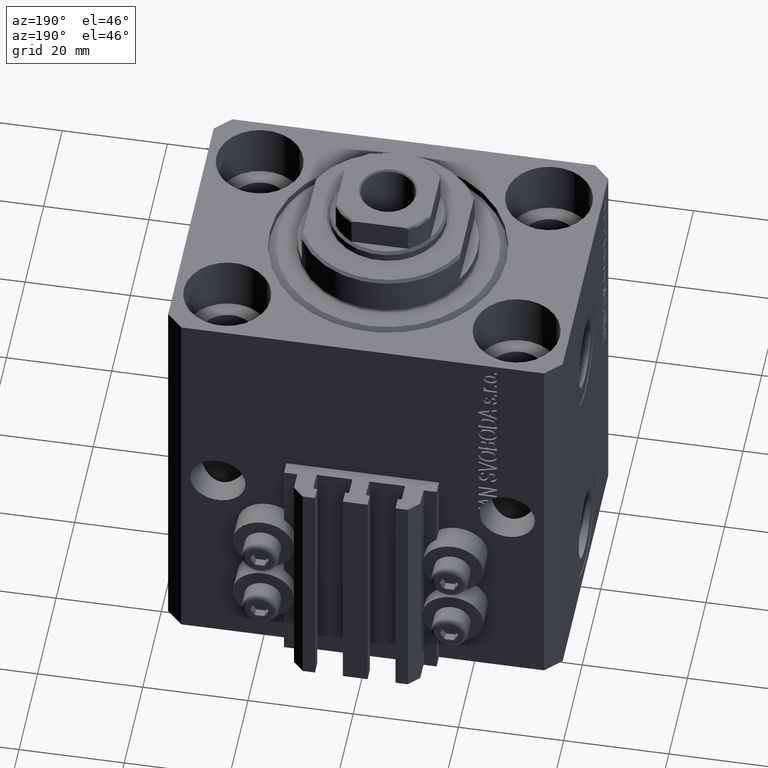
[diagram: clean part render]
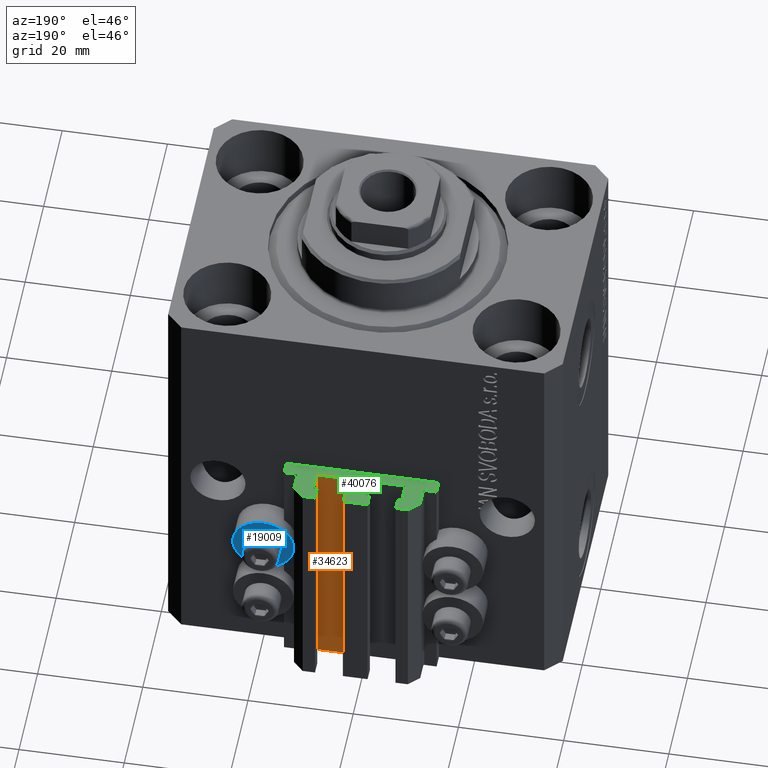
[diagram: same view with three faces highlighted in distinct colors, each labeled with its STEP entity id]
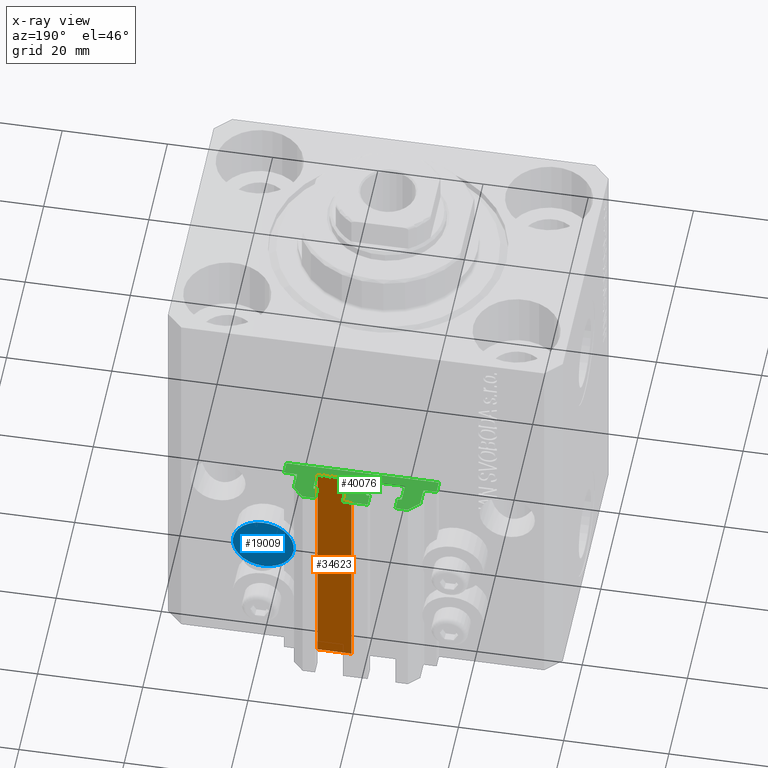
[diagram: x-ray of the same camera — body ghosted, the three highlighted faces saturated]
A machine part, auxiliary view with three faces highlighted in distinct colors.
The next image is the same camera in x-ray (body ghosted, the three faces saturated) — at least one of them is partly hidden behind the body in this view.
Their STEP definitions:

[orange] entity #34623 — the highlighted planar face has unit normal (-0, 1, 0).
#422 = EDGE_LOOP ( 'NONE', ( #7413, #28741, #29425, #23128 ) ) ;
#1154 = VECTOR ( 'NONE', #19245, 1000.000000000000000 ) ;
#2643 = DIRECTION ( 'NONE',  ( -1.084202172485504828E-15, 1.000000000000000000, 0.000000000000000000 ) ) ;
#4635 = VECTOR ( 'NONE', #43188, 1000.000000000000000 ) ;
#6173 = EDGE_CURVE ( 'NONE', #10795, #40583, #33169, .T. ) ;
#7413 = ORIENTED_EDGE ( 'NONE', *, *, #6173, .F. ) ;
#9013 = DIRECTION ( 'NONE',  ( -1.000000000000000000, -1.084202172485504828E-15, 0.000000000000000000 ) ) ;
#10795 = VERTEX_POINT ( 'NONE', #34994 ) ;
#13906 = DIRECTION ( 'NONE',  ( -1.000000000000000000, -1.084202172485504828E-15, 0.000000000000000000 ) ) ;
#16416 = LINE ( 'NONE', #20247, #19785 ) ;
#16581 = EDGE_CURVE ( 'NONE', #38679, #20516, #16416, .T. ) ;
#19245 = DIRECTION ( 'NONE',  ( -1.000000000000000000, -1.084202172485504828E-15, 0.000000000000000000 ) ) ;
#19785 = VECTOR ( 'NONE', #9013, 1000.000000000000000 ) ;
#20247 = CARTESIAN_POINT ( 'NONE',  ( 8.199999999999999289, 29.50000000000000711, -80.00000000000000000 ) ) ;
#20516 = VERTEX_POINT ( 'NONE', #30647 ) ;
#21354 = EDGE_CURVE ( 'NONE', #38679, #10795, #31716, .T. ) ;
#23128 = ORIENTED_EDGE ( 'NONE', *, *, #41628, .T. ) ;
#23729 = CARTESIAN_POINT ( 'NONE',  ( 8.199999999999999289, 29.50000000000000711, -80.00000000000000000 ) ) ;
#24377 = VECTOR ( 'NONE', #42295, 1000.000000000000000 ) ;
#28741 = ORIENTED_EDGE ( 'NONE', *, *, #21354, .F. ) ;
#28817 = LINE ( 'NONE', #38468, #24377 ) ;
#29425 = ORIENTED_EDGE ( 'NONE', *, *, #16581, .T. ) ;
#30647 = CARTESIAN_POINT ( 'NONE',  ( 1.800000000000000933, 29.50000000000000000, -80.00000000000000000 ) ) ;
#31716 = LINE ( 'NONE', #31941, #4635 ) ;
#31941 = CARTESIAN_POINT ( 'NONE',  ( 8.199999999999999289, 29.50000000000000711, -80.00000000000000000 ) ) ;
#33169 = LINE ( 'NONE', #41279, #1154 ) ;
#34623 = ADVANCED_FACE ( 'NONE', ( #46692 ), #35697, .T. ) ;
#34994 = CARTESIAN_POINT ( 'NONE',  ( 8.199999999999999289, 29.50000000000000711, -33.00000000000000000 ) ) ;
#35697 = PLANE ( 'NONE',  #40869 ) ;
#38468 = CARTESIAN_POINT ( 'NONE',  ( 1.800000000000000933, 29.50000000000000000, -80.00000000000000000 ) ) ;
#38679 = VERTEX_POINT ( 'NONE', #23729 ) ;
#39507 = CARTESIAN_POINT ( 'NONE',  ( 8.199999999999999289, 29.50000000000000711, -80.00000000000000000 ) ) ;
#40583 = VERTEX_POINT ( 'NONE', #46993 ) ;
#40869 = AXIS2_PLACEMENT_3D ( 'NONE', #39507, #2643, #13906 ) ;
#41279 = CARTESIAN_POINT ( 'NONE',  ( 8.199999999999999289, 29.50000000000000711, -33.00000000000000000 ) ) ;
#41628 = EDGE_CURVE ( 'NONE', #20516, #40583, #28817, .T. ) ;
#42295 = DIRECTION ( 'NONE',  ( 0.000000000000000000, 0.000000000000000000, 1.000000000000000000 ) ) ;
#43188 = DIRECTION ( 'NONE',  ( 0.000000000000000000, 0.000000000000000000, 1.000000000000000000 ) ) ;
#46692 = FACE_OUTER_BOUND ( 'NONE', #422, .T. ) ;
#46993 = CARTESIAN_POINT ( 'NONE',  ( 1.800000000000000933, 29.50000000000000000, -33.00000000000000000 ) ) ;

[blue] entity #19009 — the highlighted planar face has unit normal (0, -1, 0).
#62 = AXIS2_PLACEMENT_3D ( 'NONE', #12519, #41718, #38367 ) ;
#214 = FACE_BOUND ( 'NONE', #1179, .T. ) ;
#1179 = EDGE_LOOP ( 'NONE', ( #9471, #18612 ) ) ;
#1497 = AXIS2_PLACEMENT_3D ( 'NONE', #39963, #29209, #18869 ) ;
#1608 = CARTESIAN_POINT ( 'NONE',  ( 18.00000000000000355, 32.49999999996100541, -50.39999999999999858 ) ) ;
#2622 = EDGE_LOOP ( 'NONE', ( #44557, #7031 ) ) ;
#3701 = DIRECTION ( 'NONE',  ( -0.000000000000000000, -1.000000000000000000, -0.000000000000000000 ) ) ;
#6050 = CIRCLE ( 'NONE', #38932, 2.000000000000001776 ) ;
#7031 = ORIENTED_EDGE ( 'NONE', *, *, #46108, .F. ) ;
#7707 = CIRCLE ( 'NONE', #62, 5.799999999999999822 ) ;
#8754 = DIRECTION ( 'NONE',  ( -0.000000000000000000, -1.000000000000000000, -0.000000000000000000 ) ) ;
#9460 = CARTESIAN_POINT ( 'NONE',  ( 18.00000000000000355, 32.49999999996100541, -50.39999999999999858 ) ) ;
#9471 = ORIENTED_EDGE ( 'NONE', *, *, #42215, .T. ) ;
#9902 = CIRCLE ( 'NONE', #22907, 2.000000000000001776 ) ;
#12519 = CARTESIAN_POINT ( 'NONE',  ( 18.00000000000000355, 32.49999999996100541, -50.39999999999999858 ) ) ;
#12643 = DIRECTION ( 'NONE',  ( 0.000000000000000000, 0.000000000000000000, 1.000000000000000000 ) ) ;
#13310 = CARTESIAN_POINT ( 'NONE',  ( 18.00000000000000355, 32.49999999996100541, -52.40000000000000568 ) ) ;
#17491 = VERTEX_POINT ( 'NONE', #28654 ) ;
#18317 = DIRECTION ( 'NONE',  ( 0.000000000000000000, 0.000000000000000000, 1.000000000000000000 ) ) ;
#18434 = VERTEX_POINT ( 'NONE', #13310 ) ;
#18612 = ORIENTED_EDGE ( 'NONE', *, *, #42934, .T. ) ;
#18869 = DIRECTION ( 'NONE',  ( -0.000000000000000000, 0.000000000000000000, -1.000000000000000000 ) ) ;
#19009 = ADVANCED_FACE ( 'NONE', ( #214, #33268 ), #29446, .F. ) ;
#22143 = CARTESIAN_POINT ( 'NONE',  ( 18.00000000000000355, 32.49999999996100541, -50.39999999999999858 ) ) ;
#22907 = AXIS2_PLACEMENT_3D ( 'NONE', #9460, #8754, #45835 ) ;
#23023 = VERTEX_POINT ( 'NONE', #29790 ) ;
#24740 = CIRCLE ( 'NONE', #30091, 5.799999999999999822 ) ;
#27028 = VERTEX_POINT ( 'NONE', #45962 ) ;
#27221 = EDGE_CURVE ( 'NONE', #23023, #27028, #24740, .T. ) ;
#28654 = CARTESIAN_POINT ( 'NONE',  ( 18.00000000000000355, 32.49999999996100541, -48.39999999999999858 ) ) ;
#29209 = DIRECTION ( 'NONE',  ( 0.000000000000000000, -1.000000000000000000, -0.000000000000000000 ) ) ;
#29446 = PLANE ( 'NONE',  #1497 ) ;
#29790 = CARTESIAN_POINT ( 'NONE',  ( 18.00000000000000355, 32.49999999996100541, -44.60000000000000142 ) ) ;
#30091 = AXIS2_PLACEMENT_3D ( 'NONE', #1608, #30850, #12643 ) ;
#30850 = DIRECTION ( 'NONE',  ( -0.000000000000000000, -1.000000000000000000, -0.000000000000000000 ) ) ;
#33268 = FACE_OUTER_BOUND ( 'NONE', #2622, .T. ) ;
#38367 = DIRECTION ( 'NONE',  ( 0.000000000000000000, 0.000000000000000000, 1.000000000000000000 ) ) ;
#38932 = AXIS2_PLACEMENT_3D ( 'NONE', #22143, #3701, #18317 ) ;
#39963 = CARTESIAN_POINT ( 'NONE',  ( 12.20000000000000284, 32.49999999996100541, -50.39999999999999858 ) ) ;
#41718 = DIRECTION ( 'NONE',  ( -0.000000000000000000, -1.000000000000000000, -0.000000000000000000 ) ) ;
#42215 = EDGE_CURVE ( 'NONE', #17491, #18434, #6050, .T. ) ;
#42934 = EDGE_CURVE ( 'NONE', #18434, #17491, #9902, .T. ) ;
#44557 = ORIENTED_EDGE ( 'NONE', *, *, #27221, .F. ) ;
#45835 = DIRECTION ( 'NONE',  ( 0.000000000000000000, 0.000000000000000000, 1.000000000000000000 ) ) ;
#45962 = CARTESIAN_POINT ( 'NONE',  ( 18.00000000000000355, 32.49999999996100541, -56.20000000000000284 ) ) ;
#46108 = EDGE_CURVE ( 'NONE', #27028, #23023, #7707, .T. ) ;

[green] entity #40076 — the highlighted planar face has unit normal (0, 0, 1).
#93 = VECTOR ( 'NONE', #3842, 1000.000000000000000 ) ;
#95 = ORIENTED_EDGE ( 'NONE', *, *, #41679, .T. ) ;
#294 = ORIENTED_EDGE ( 'NONE', *, *, #34021, .T. ) ;
#355 = VERTEX_POINT ( 'NONE', #30087 ) ;
#427 = VERTEX_POINT ( 'NONE', #13929 ) ;
#461 = ORIENTED_EDGE ( 'NONE', *, *, #30390, .F. ) ;
#508 = CARTESIAN_POINT ( 'NONE',  ( 12.00000000000000000, 33.50000000000001421, -33.00000000000000000 ) ) ;
#671 = LINE ( 'NONE', #25358, #37748 ) ;
#682 = VECTOR ( 'NONE', #43181, 1000.000000000000000 ) ;
#1154 = VECTOR ( 'NONE', #19245, 1000.000000000000000 ) ;
#1726 = AXIS2_PLACEMENT_3D ( 'NONE', #15815, #5519, #34267 ) ;
#1743 = EDGE_CURVE ( 'NONE', #22762, #427, #671, .T. ) ;
#1856 = CARTESIAN_POINT ( 'NONE',  ( -10.00000000000000000, 35.50000000000000000, -33.00000000000000000 ) ) ;
#1875 = DIRECTION ( 'NONE',  ( 1.807003620809174632E-16, -1.000000000000000000, 0.000000000000000000 ) ) ;
#1945 = EDGE_CURVE ( 'NONE', #23983, #15799, #15989, .T. ) ;
#1978 = CARTESIAN_POINT ( 'NONE',  ( 1.800000000000000933, 32.90000000000001279, -33.00000000000000000 ) ) ;
#2035 = DIRECTION ( 'NONE',  ( -5.421010862427496532E-16, -1.000000000000000000, 0.000000000000000000 ) ) ;
#2072 = ORIENTED_EDGE ( 'NONE', *, *, #9873, .F. ) ;
#2077 = VECTOR ( 'NONE', #16484, 1000.000000000000000 ) ;
#2109 = VECTOR ( 'NONE', #16728, 1000.000000000000000 ) ;
#2466 = DIRECTION ( 'NONE',  ( 1.000000000000000000, 0.000000000000000000, 0.000000000000000000 ) ) ;
#2528 = EDGE_CURVE ( 'NONE', #23568, #24654, #13889, .T. ) ;
#2552 = CIRCLE ( 'NONE', #42310, 0.2000000000000016209 ) ;
#3842 = DIRECTION ( 'NONE',  ( 1.000000000000000000, -1.261617073437681085E-14, 0.000000000000000000 ) ) ;
#4005 = VERTEX_POINT ( 'NONE', #38655 ) ;
#4211 = VERTEX_POINT ( 'NONE', #30012 ) ;
#4399 = AXIS2_PLACEMENT_3D ( 'NONE', #26088, #44741, #29211 ) ;
#5230 = CIRCLE ( 'NONE', #9834, 0.1999999999999987899 ) ;
#5302 = ORIENTED_EDGE ( 'NONE', *, *, #39037, .F. ) ;
#5407 = DIRECTION ( 'NONE',  ( -1.000000000000000000, 0.000000000000000000, 0.000000000000000000 ) ) ;
#5445 = VERTEX_POINT ( 'NONE', #46915 ) ;
#5519 = DIRECTION ( 'NONE',  ( 0.000000000000000000, 0.000000000000000000, 1.000000000000000000 ) ) ;
#5555 = VERTEX_POINT ( 'NONE', #42615 ) ;
#6114 = LINE ( 'NONE', #42749, #38831 ) ;
#6115 = LINE ( 'NONE', #38914, #18702 ) ;
#6173 = EDGE_CURVE ( 'NONE', #10795, #40583, #33169, .T. ) ;
#6193 = CARTESIAN_POINT ( 'NONE',  ( 8.399999999999998579, 32.90000000000001990, -33.00000000000000000 ) ) ;
#6479 = PLANE ( 'NONE',  #37325 ) ;
#6695 = DIRECTION ( 'NONE',  ( 0.000000000000000000, 1.000000000000000000, 0.000000000000000000 ) ) ;
#6787 = LINE ( 'NONE', #45886, #41184 ) ;
#6855 = CARTESIAN_POINT ( 'NONE',  ( -14.50000000000000000, 29.99999999999999289, -33.00000000000000000 ) ) ;
#6899 = CARTESIAN_POINT ( 'NONE',  ( 2.349999999999999645, 35.50000000000001421, -33.00000000000000000 ) ) ;
#7842 = ORIENTED_EDGE ( 'NONE', *, *, #11061, .T. ) ;
#8081 = ORIENTED_EDGE ( 'NONE', *, *, #42762, .T. ) ;
#8103 = LINE ( 'NONE', #15981, #15506 ) ;
#8144 = CARTESIAN_POINT ( 'NONE',  ( 12.00000000000000178, 30.20000000000002061, -33.00000000000000000 ) ) ;
#8185 = DIRECTION ( 'NONE',  ( -0.7071067811865474617, 0.7071067811865474617, 0.000000000000000000 ) ) ;
#9083 = VECTOR ( 'NONE', #33400, 1000.000000000000000 ) ;
#9164 = EDGE_CURVE ( 'NONE', #45256, #12548, #38747, .T. ) ;
#9280 = ORIENTED_EDGE ( 'NONE', *, *, #40641, .T. ) ;
#9317 = DIRECTION ( 'NONE',  ( 1.000000000000000000, 0.000000000000000000, 0.000000000000000000 ) ) ;
#9546 = VECTOR ( 'NONE', #2035, 1000.000000000000000 ) ;
#9704 = VERTEX_POINT ( 'NONE', #34581 ) ;
#9737 = DIRECTION ( 'NONE',  ( -1.084202172485505223E-15, 1.000000000000000000, 0.000000000000000000 ) ) ;
#9818 = CARTESIAN_POINT ( 'NONE',  ( 8.199999999999999289, 29.70000000000000284, -33.00000000000000000 ) ) ;
#9834 = AXIS2_PLACEMENT_3D ( 'NONE', #29733, #21597, #25908 ) ;
#9856 = CIRCLE ( 'NONE', #28206, 0.1999999999999994282 ) ;
#9873 = EDGE_CURVE ( 'NONE', #31463, #36011, #31219, .T. ) ;
#10002 = ORIENTED_EDGE ( 'NONE', *, *, #16763, .F. ) ;
#10150 = CARTESIAN_POINT ( 'NONE',  ( 2.349999999999999645, 33.10000000000000853, -33.00000000000000000 ) ) ;
#10297 = EDGE_CURVE ( 'NONE', #39164, #4005, #35587, .T. ) ;
#10348 = CARTESIAN_POINT ( 'NONE',  ( -2.350000000000003197, 33.10000000000000853, -33.00000000000000000 ) ) ;
#10624 = VERTEX_POINT ( 'NONE', #29995 ) ;
#10786 = LINE ( 'NONE', #25382, #45732 ) ;
#10795 = VERTEX_POINT ( 'NONE', #34994 ) ;
#10817 = CIRCLE ( 'NONE', #38327, 0.1999999999999987899 ) ;
#11061 = EDGE_CURVE ( 'NONE', #38008, #20220, #19615, .T. ) ;
#11155 = EDGE_CURVE ( 'NONE', #4211, #46186, #27990, .T. ) ;
#11334 = VECTOR ( 'NONE', #5407, 1000.000000000000000 ) ;
#11407 = CIRCLE ( 'NONE', #44270, 0.2000000000000005107 ) ;
#11569 = VERTEX_POINT ( 'NONE', #31064 ) ;
#12025 = CARTESIAN_POINT ( 'NONE',  ( 12.00000000000000000, 33.50000000000001421, -33.00000000000000000 ) ) ;
#12076 = VECTOR ( 'NONE', #23451, 1000.000000000000000 ) ;
#12225 = EDGE_CURVE ( 'NONE', #427, #5555, #10786, .T. ) ;
#12511 = CARTESIAN_POINT ( 'NONE',  ( -12.20000000000000107, 29.99999999999998934, -33.00000000000000000 ) ) ;
#12548 = VERTEX_POINT ( 'NONE', #19548 ) ;
#12655 = ORIENTED_EDGE ( 'NONE', *, *, #28119, .F. ) ;
#12839 = CARTESIAN_POINT ( 'NONE',  ( 8.400000000000000355, 32.90000000000001990, -33.00000000000000000 ) ) ;
#13087 = EDGE_CURVE ( 'NONE', #10624, #22762, #22016, .T. ) ;
#13204 = CARTESIAN_POINT ( 'NONE',  ( 12.20000000000000107, 30.20000000000002061, -33.00000000000000000 ) ) ;
#13398 = CARTESIAN_POINT ( 'NONE',  ( -1.800000000000000933, 29.50000000000000355, -33.00000000000000000 ) ) ;
#13777 = CARTESIAN_POINT ( 'NONE',  ( 7.649999999999998579, 35.50000000000001421, -33.00000000000000000 ) ) ;
#13781 = DIRECTION ( 'NONE',  ( 1.000000000000000000, 0.000000000000000000, 0.000000000000000000 ) ) ;
#13812 = LINE ( 'NONE', #6855, #39713 ) ;
#13841 = CARTESIAN_POINT ( 'NONE',  ( 12.00000000000000178, 30.20000000000002061, -33.00000000000000000 ) ) ;
#13884 = AXIS2_PLACEMENT_3D ( 'NONE', #14946, #18755, #22593 ) ;
#13889 = LINE ( 'NONE', #42389, #34707 ) ;
#13914 = CIRCLE ( 'NONE', #22346, 0.2000000000000033418 ) ;
#13929 = CARTESIAN_POINT ( 'NONE',  ( 7.649999999999998579, 33.10000000000001563, -33.00000000000000000 ) ) ;
#14453 = ORIENTED_EDGE ( 'NONE', *, *, #40391, .T. ) ;
#14467 = ORIENTED_EDGE ( 'NONE', *, *, #27144, .T. ) ;
#14946 = CARTESIAN_POINT ( 'NONE',  ( -12.20000000000000107, 30.19999999999999218, -33.00000000000000000 ) ) ;
#15065 = DIRECTION ( 'NONE',  ( 1.000000000000000000, -1.261617073437673828E-14, 0.000000000000000000 ) ) ;
#15506 = VECTOR ( 'NONE', #40412, 1000.000000000000000 ) ;
#15570 = CARTESIAN_POINT ( 'NONE',  ( -8.199999999999997513, 29.50000000000000355, -33.00000000000000000 ) ) ;
#15799 = VERTEX_POINT ( 'NONE', #31734 ) ;
#15815 = CARTESIAN_POINT ( 'NONE',  ( -1.800000000000000933, 32.90000000000001279, -33.00000000000000000 ) ) ;
#15963 = CIRCLE ( 'NONE', #4399, 0.1999999999999970690 ) ;
#15981 = CARTESIAN_POINT ( 'NONE',  ( 14.49999999999999645, 30.00000000000002487, -33.00000000000000000 ) ) ;
#15989 = LINE ( 'NONE', #1856, #16308 ) ;
#16291 = ORIENTED_EDGE ( 'NONE', *, *, #22982, .F. ) ;
#16308 = VECTOR ( 'NONE', #20061, 1000.000000000000227 ) ;
#16363 = DIRECTION ( 'NONE',  ( 1.000000000000000000, 0.000000000000000000, 0.000000000000000000 ) ) ;
#16484 = DIRECTION ( 'NONE',  ( -1.000000000000000000, 1.508455196501571429E-15, 0.000000000000000000 ) ) ;
#16728 = DIRECTION ( 'NONE',  ( -1.000000000000000000, 0.000000000000000000, 0.000000000000000000 ) ) ;
#16763 = EDGE_CURVE ( 'NONE', #4211, #26931, #9856, .T. ) ;
#16907 = LINE ( 'NONE', #20736, #23000 ) ;
#17013 = DIRECTION ( 'NONE',  ( 1.000000000000000000, 0.000000000000000000, -0.000000000000000000 ) ) ;
#17124 = LINE ( 'NONE', #12839, #9546 ) ;
#17941 = DIRECTION ( 'NONE',  ( 1.000000000000000000, 1.261617073437685503E-14, 0.000000000000000000 ) ) ;
#18086 = DIRECTION ( 'NONE',  ( 0.000000000000000000, -1.000000000000000000, 0.000000000000000000 ) ) ;
#18151 = CARTESIAN_POINT ( 'NONE',  ( -2.350000000000003642, 35.50000000000001421, -33.00000000000000000 ) ) ;
#18702 = VECTOR ( 'NONE', #35577, 1000.000000000000000 ) ;
#18755 = DIRECTION ( 'NONE',  ( 0.000000000000000000, 0.000000000000000000, 1.000000000000000000 ) ) ;
#18894 = VERTEX_POINT ( 'NONE', #39268 ) ;
#19141 = ORIENTED_EDGE ( 'NONE', *, *, #41802, .T. ) ;
#19245 = DIRECTION ( 'NONE',  ( -1.000000000000000000, -1.084202172485504828E-15, 0.000000000000000000 ) ) ;
#19548 = CARTESIAN_POINT ( 'NONE',  ( -14.50000000000000000, 29.99999999999999289, -33.00000000000000000 ) ) ;
#19615 = LINE ( 'NONE', #8144, #12076 ) ;
#19680 = EDGE_CURVE ( 'NONE', #31463, #43370, #23676, .T. ) ;
#19961 = DIRECTION ( 'NONE',  ( 0.000000000000000000, 0.000000000000000000, 1.000000000000000000 ) ) ;
#20061 = DIRECTION ( 'NONE',  ( -0.7071067811865460184, -0.7071067811865490160, 0.000000000000000000 ) ) ;
#20220 = VERTEX_POINT ( 'NONE', #12025 ) ;
#20257 = CARTESIAN_POINT ( 'NONE',  ( -7.650000000000000355, 35.50000000000000000, -33.00000000000000000 ) ) ;
#20273 = CARTESIAN_POINT ( 'NONE',  ( -1.600000000000000533, 32.90000000000001279, -33.00000000000000000 ) ) ;
#20382 = CARTESIAN_POINT ( 'NONE',  ( 12.20000000000000107, 30.20000000000002061, -33.00000000000000000 ) ) ;
#20579 = VERTEX_POINT ( 'NONE', #6193 ) ;
#20667 = CARTESIAN_POINT ( 'NONE',  ( -2.350000000000003642, 35.50000000000001421, -33.00000000000000000 ) ) ;
#20736 = CARTESIAN_POINT ( 'NONE',  ( 14.49999999999999645, 27.50000000000000355, -33.00000000000000000 ) ) ;
#20878 = EDGE_CURVE ( 'NONE', #9704, #29379, #16907, .T. ) ;
#21210 = ORIENTED_EDGE ( 'NONE', *, *, #1945, .T. ) ;
#21597 = DIRECTION ( 'NONE',  ( 0.000000000000000000, 0.000000000000000000, 1.000000000000000000 ) ) ;
#22016 = LINE ( 'NONE', #36631, #35074 ) ;
#22346 = AXIS2_PLACEMENT_3D ( 'NONE', #1978, #19961, #16363 ) ;
#22359 = ORIENTED_EDGE ( 'NONE', *, *, #24763, .F. ) ;
#22427 = EDGE_CURVE ( 'NONE', #18894, #5445, #40476, .T. ) ;
#22593 = DIRECTION ( 'NONE',  ( 1.000000000000000000, 0.000000000000000000, 0.000000000000000000 ) ) ;
#22762 = VERTEX_POINT ( 'NONE', #13777 ) ;
#22982 = EDGE_CURVE ( 'NONE', #45256, #11569, #24610, .T. ) ;
#23000 = VECTOR ( 'NONE', #45646, 1000.000000000000000 ) ;
#23385 = ORIENTED_EDGE ( 'NONE', *, *, #2528, .T. ) ;
#23430 = CIRCLE ( 'NONE', #27262, 0.1999999999999987899 ) ;
#23451 = DIRECTION ( 'NONE',  ( -5.256737805990334897E-16, 1.000000000000000000, 0.000000000000000000 ) ) ;
#23548 = CARTESIAN_POINT ( 'NONE',  ( -7.650000000000000355, 35.50000000000000000, -33.00000000000000000 ) ) ;
#23568 = VERTEX_POINT ( 'NONE', #37978 ) ;
#23676 = LINE ( 'NONE', #27039, #27560 ) ;
#23952 = EDGE_CURVE ( 'NONE', #20220, #10624, #40974, .T. ) ;
#23983 = VERTEX_POINT ( 'NONE', #25909 ) ;
#24256 = DIRECTION ( 'NONE',  ( 0.000000000000000000, 1.000000000000000000, 0.000000000000000000 ) ) ;
#24601 = EDGE_LOOP ( 'NONE', ( #8081, #41123, #32736, #14467, #31548, #7842, #26905, #40404, #35055, #28130, #28512, #294, #34197, #44411, #12655, #31807, #22359, #30838, #9280, #2072, #37161, #26293, #461, #95, #10002, #46461, #45663, #25385, #5302, #19141, #23385, #37515, #21210, #14453, #16291, #40933 ) ) ;
#24610 = CIRCLE ( 'NONE', #13884, 0.2000000000000005107 ) ;
#24654 = VERTEX_POINT ( 'NONE', #23548 ) ;
#24763 = EDGE_CURVE ( 'NONE', #18894, #40195, #13914, .T. ) ;
#24905 = CARTESIAN_POINT ( 'NONE',  ( -8.199999999999997513, 33.09999999999998721, -33.00000000000000000 ) ) ;
#24967 = CARTESIAN_POINT ( 'NONE',  ( -14.50000000000000000, 27.50000000000000355, -33.00000000000000000 ) ) ;
#25024 = DIRECTION ( 'NONE',  ( 0.000000000000000000, 1.000000000000000000, 0.000000000000000000 ) ) ;
#25358 = CARTESIAN_POINT ( 'NONE',  ( 7.649999999999998579, 35.50000000000001421, -33.00000000000000000 ) ) ;
#25382 = CARTESIAN_POINT ( 'NONE',  ( 7.649999999999998579, 33.10000000000001563, -33.00000000000000000 ) ) ;
#25385 = ORIENTED_EDGE ( 'NONE', *, *, #10297, .T. ) ;
#25791 = VECTOR ( 'NONE', #2466, 1000.000000000000000 ) ;
#25908 = DIRECTION ( 'NONE',  ( 1.000000000000000000, 0.000000000000000000, 0.000000000000000000 ) ) ;
#25909 = CARTESIAN_POINT ( 'NONE',  ( -10.00000000000000000, 35.50000000000000000, -33.00000000000000000 ) ) ;
#26075 = DIRECTION ( 'NONE',  ( 0.000000000000000000, -1.000000000000000000, 0.000000000000000000 ) ) ;
#26088 = CARTESIAN_POINT ( 'NONE',  ( 8.200000000000001066, 32.90000000000001990, -33.00000000000000000 ) ) ;
#26293 = ORIENTED_EDGE ( 'NONE', *, *, #33999, .T. ) ;
#26747 = CARTESIAN_POINT ( 'NONE',  ( 1.600000000000000533, 32.90000000000001279, -33.00000000000000000 ) ) ;
#26890 = CARTESIAN_POINT ( 'NONE',  ( 14.49999999999999645, 30.00000000000002487, -33.00000000000000000 ) ) ;
#26905 = ORIENTED_EDGE ( 'NONE', *, *, #23952, .T. ) ;
#26931 = VERTEX_POINT ( 'NONE', #31130 ) ;
#27039 = CARTESIAN_POINT ( 'NONE',  ( -2.350000000000003642, 35.50000000000001421, -33.00000000000000000 ) ) ;
#27104 = DIRECTION ( 'NONE',  ( 1.000000000000000000, 0.000000000000000000, 0.000000000000000000 ) ) ;
#27144 = EDGE_CURVE ( 'NONE', #29379, #355, #8103, .T. ) ;
#27262 = AXIS2_PLACEMENT_3D ( 'NONE', #20382, #45759, #27104 ) ;
#27560 = VECTOR ( 'NONE', #1875, 1000.000000000000000 ) ;
#27575 = CARTESIAN_POINT ( 'NONE',  ( 1.599999999999999645, 29.69999999999999929, -33.00000000000000000 ) ) ;
#27963 = CARTESIAN_POINT ( 'NONE',  ( 1.800000000000000933, 29.69999999999999929, -33.00000000000000000 ) ) ;
#27990 = LINE ( 'NONE', #13398, #2109 ) ;
#28011 = DIRECTION ( 'NONE',  ( 1.000000000000000000, 0.000000000000000000, 0.000000000000000000 ) ) ;
#28119 = EDGE_CURVE ( 'NONE', #40958, #40583, #2552, .T. ) ;
#28130 = ORIENTED_EDGE ( 'NONE', *, *, #12225, .T. ) ;
#28206 = AXIS2_PLACEMENT_3D ( 'NONE', #43219, #39145, #13781 ) ;
#28244 = DIRECTION ( 'NONE',  ( 0.000000000000000000, 0.000000000000000000, 1.000000000000000000 ) ) ;
#28512 = ORIENTED_EDGE ( 'NONE', *, *, #38970, .F. ) ;
#29109 = LINE ( 'NONE', #43943, #9083 ) ;
#29211 = DIRECTION ( 'NONE',  ( 1.000000000000000000, 0.000000000000000000, 0.000000000000000000 ) ) ;
#29379 = VERTEX_POINT ( 'NONE', #26890 ) ;
#29383 = CARTESIAN_POINT ( 'NONE',  ( 8.400000000000000355, 29.70000000000000284, -33.00000000000000000 ) ) ;
#29733 = CARTESIAN_POINT ( 'NONE',  ( -8.199999999999997513, 29.69999999999999929, -33.00000000000000000 ) ) ;
#29995 = CARTESIAN_POINT ( 'NONE',  ( 9.999999999999998224, 35.50000000000001421, -33.00000000000000000 ) ) ;
#30012 = CARTESIAN_POINT ( 'NONE',  ( -1.800000000000000933, 29.50000000000000355, -33.00000000000000000 ) ) ;
#30087 = CARTESIAN_POINT ( 'NONE',  ( 12.20000000000000107, 30.00000000000002487, -33.00000000000000000 ) ) ;
#30390 = EDGE_CURVE ( 'NONE', #44780, #36451, #39198, .T. ) ;
#30838 = ORIENTED_EDGE ( 'NONE', *, *, #22427, .T. ) ;
#30916 = VERTEX_POINT ( 'NONE', #41715 ) ;
#31064 = CARTESIAN_POINT ( 'NONE',  ( -12.00000000000000000, 30.19999999999999218, -33.00000000000000000 ) ) ;
#31130 = CARTESIAN_POINT ( 'NONE',  ( -1.600000000000000755, 29.69999999999999929, -33.00000000000000000 ) ) ;
#31181 = VECTOR ( 'NONE', #9737, 1000.000000000000000 ) ;
#31219 = LINE ( 'NONE', #20667, #25791 ) ;
#31289 = DIRECTION ( 'NONE',  ( 1.000000000000000000, 0.000000000000000000, 0.000000000000000000 ) ) ;
#31463 = VERTEX_POINT ( 'NONE', #18151 ) ;
#31548 = ORIENTED_EDGE ( 'NONE', *, *, #35389, .F. ) ;
#31734 = CARTESIAN_POINT ( 'NONE',  ( -12.00000000000000000, 33.49999999999998579, -33.00000000000000000 ) ) ;
#31807 = ORIENTED_EDGE ( 'NONE', *, *, #39403, .T. ) ;
#31931 = DIRECTION ( 'NONE',  ( -1.000000000000000000, 0.000000000000000000, 0.000000000000000000 ) ) ;
#32736 = ORIENTED_EDGE ( 'NONE', *, *, #20878, .T. ) ;
#33169 = LINE ( 'NONE', #41279, #1154 ) ;
#33271 = CARTESIAN_POINT ( 'NONE',  ( -8.199999999999997513, 32.89999999999999147, -33.00000000000000000 ) ) ;
#33400 = DIRECTION ( 'NONE',  ( 0.000000000000000000, -1.000000000000000000, 0.000000000000000000 ) ) ;
#33999 = EDGE_CURVE ( 'NONE', #43370, #36451, #6115, .T. ) ;
#34021 = EDGE_CURVE ( 'NONE', #20579, #36340, #17124, .T. ) ;
#34197 = ORIENTED_EDGE ( 'NONE', *, *, #46450, .F. ) ;
#34267 = DIRECTION ( 'NONE',  ( 1.000000000000000000, 0.000000000000000000, 0.000000000000000000 ) ) ;
#34581 = CARTESIAN_POINT ( 'NONE',  ( 14.49999999999999645, 27.50000000000000355, -33.00000000000000000 ) ) ;
#34707 = VECTOR ( 'NONE', #6695, 1000.000000000000000 ) ;
#34994 = CARTESIAN_POINT ( 'NONE',  ( 8.199999999999999289, 29.50000000000000711, -33.00000000000000000 ) ) ;
#35042 = VECTOR ( 'NONE', #24256, 1000.000000000000000 ) ;
#35055 = ORIENTED_EDGE ( 'NONE', *, *, #1743, .T. ) ;
#35074 = VECTOR ( 'NONE', #31931, 1000.000000000000000 ) ;
#35143 = DIRECTION ( 'NONE',  ( 1.000000000000000000, 0.000000000000000000, 0.000000000000000000 ) ) ;
#35389 = EDGE_CURVE ( 'NONE', #38008, #355, #23430, .T. ) ;
#35452 = LINE ( 'NONE', #24905, #38899 ) ;
#35461 = DIRECTION ( 'NONE',  ( 0.000000000000000000, 0.000000000000000000, 1.000000000000000000 ) ) ;
#35577 = DIRECTION ( 'NONE',  ( 1.000000000000000000, 1.261617073437673039E-14, 0.000000000000000000 ) ) ;
#35587 = LINE ( 'NONE', #42999, #31181 ) ;
#36011 = VERTEX_POINT ( 'NONE', #6899 ) ;
#36340 = VERTEX_POINT ( 'NONE', #29383 ) ;
#36451 = VERTEX_POINT ( 'NONE', #37497 ) ;
#36631 = CARTESIAN_POINT ( 'NONE',  ( 9.999999999999998224, 35.50000000000001421, -33.00000000000000000 ) ) ;
#36659 = CARTESIAN_POINT ( 'NONE',  ( 1.800000000000000933, 33.10000000000001563, -33.00000000000000000 ) ) ;
#36872 = VECTOR ( 'NONE', #8185, 1000.000000000000114 ) ;
#37161 = ORIENTED_EDGE ( 'NONE', *, *, #19680, .T. ) ;
#37325 = AXIS2_PLACEMENT_3D ( 'NONE', #13204, #35461, #17013 ) ;
#37497 = CARTESIAN_POINT ( 'NONE',  ( -1.800000000000000933, 33.10000000000001563, -33.00000000000000000 ) ) ;
#37515 = ORIENTED_EDGE ( 'NONE', *, *, #39310, .T. ) ;
#37748 = VECTOR ( 'NONE', #26075, 1000.000000000000000 ) ;
#37807 = EDGE_CURVE ( 'NONE', #39164, #46186, #5230, .T. ) ;
#37978 = CARTESIAN_POINT ( 'NONE',  ( -7.650000000000000355, 33.09999999999999432, -33.00000000000000000 ) ) ;
#38008 = VERTEX_POINT ( 'NONE', #13841 ) ;
#38236 = LINE ( 'NONE', #20273, #682 ) ;
#38327 = AXIS2_PLACEMENT_3D ( 'NONE', #9818, #28244, #28011 ) ;
#38452 = LINE ( 'NONE', #20257, #11334 ) ;
#38497 = DIRECTION ( 'NONE',  ( 0.000000000000000000, 0.000000000000000000, 1.000000000000000000 ) ) ;
#38655 = CARTESIAN_POINT ( 'NONE',  ( -8.400000000000000355, 32.89999999999999858, -33.00000000000000000 ) ) ;
#38747 = LINE ( 'NONE', #45692, #2077 ) ;
#38831 = VECTOR ( 'NONE', #25024, 1000.000000000000000 ) ;
#38899 = VECTOR ( 'NONE', #17941, 1000.000000000000000 ) ;
#38914 = CARTESIAN_POINT ( 'NONE',  ( -2.350000000000003197, 33.10000000000000853, -33.00000000000000000 ) ) ;
#38970 = EDGE_CURVE ( 'NONE', #20579, #5555, #15963, .T. ) ;
#39037 = EDGE_CURVE ( 'NONE', #30916, #4005, #11407, .T. ) ;
#39145 = DIRECTION ( 'NONE',  ( 0.000000000000000000, 0.000000000000000000, 1.000000000000000000 ) ) ;
#39164 = VERTEX_POINT ( 'NONE', #43280 ) ;
#39198 = CIRCLE ( 'NONE', #1726, 0.2000000000000031197 ) ;
#39268 = CARTESIAN_POINT ( 'NONE',  ( 1.800000000000000933, 33.10000000000001563, -33.00000000000000000 ) ) ;
#39281 = FACE_OUTER_BOUND ( 'NONE', #24601, .T. ) ;
#39310 = EDGE_CURVE ( 'NONE', #24654, #23983, #38452, .T. ) ;
#39403 = EDGE_CURVE ( 'NONE', #40958, #40195, #6114, .T. ) ;
#39667 = VERTEX_POINT ( 'NONE', #24967 ) ;
#39713 = VECTOR ( 'NONE', #18086, 1000.000000000000000 ) ;
#40076 = ADVANCED_FACE ( 'NONE', ( #39281 ), #6479, .T. ) ;
#40118 = CARTESIAN_POINT ( 'NONE',  ( -1.599999999999997868, 32.90000000000001279, -33.00000000000000000 ) ) ;
#40195 = VERTEX_POINT ( 'NONE', #26747 ) ;
#40391 = EDGE_CURVE ( 'NONE', #15799, #11569, #29109, .T. ) ;
#40404 = ORIENTED_EDGE ( 'NONE', *, *, #13087, .T. ) ;
#40412 = DIRECTION ( 'NONE',  ( -1.000000000000000000, 0.000000000000000000, 0.000000000000000000 ) ) ;
#40476 = LINE ( 'NONE', #36659, #93 ) ;
#40583 = VERTEX_POINT ( 'NONE', #46993 ) ;
#40641 = EDGE_CURVE ( 'NONE', #5445, #36011, #42697, .T. ) ;
#40933 = ORIENTED_EDGE ( 'NONE', *, *, #9164, .T. ) ;
#40958 = VERTEX_POINT ( 'NONE', #27575 ) ;
#40974 = LINE ( 'NONE', #508, #36872 ) ;
#41123 = ORIENTED_EDGE ( 'NONE', *, *, #41641, .T. ) ;
#41184 = VECTOR ( 'NONE', #31289, 1000.000000000000000 ) ;
#41279 = CARTESIAN_POINT ( 'NONE',  ( 8.199999999999999289, 29.50000000000000711, -33.00000000000000000 ) ) ;
#41641 = EDGE_CURVE ( 'NONE', #39667, #9704, #6787, .T. ) ;
#41679 = EDGE_CURVE ( 'NONE', #44780, #26931, #38236, .T. ) ;
#41715 = CARTESIAN_POINT ( 'NONE',  ( -8.199999999999997513, 33.09999999999998721, -33.00000000000000000 ) ) ;
#41802 = EDGE_CURVE ( 'NONE', #30916, #23568, #35452, .T. ) ;
#42310 = AXIS2_PLACEMENT_3D ( 'NONE', #27963, #38497, #35143 ) ;
#42389 = CARTESIAN_POINT ( 'NONE',  ( -7.650000000000000355, 33.09999999999999432, -33.00000000000000000 ) ) ;
#42615 = CARTESIAN_POINT ( 'NONE',  ( 8.200000000000001066, 33.10000000000000853, -33.00000000000000000 ) ) ;
#42697 = LINE ( 'NONE', #10150, #35042 ) ;
#42749 = CARTESIAN_POINT ( 'NONE',  ( 1.600000000000000533, 29.69999999999999929, -33.00000000000000000 ) ) ;
#42762 = EDGE_CURVE ( 'NONE', #12548, #39667, #13812, .T. ) ;
#42999 = CARTESIAN_POINT ( 'NONE',  ( -8.399999999999996803, 29.69999999999999929, -33.00000000000000000 ) ) ;
#43181 = DIRECTION ( 'NONE',  ( -6.776263578034378061E-17, -1.000000000000000000, 0.000000000000000000 ) ) ;
#43219 = CARTESIAN_POINT ( 'NONE',  ( -1.800000000000000933, 29.69999999999999929, -33.00000000000000000 ) ) ;
#43280 = CARTESIAN_POINT ( 'NONE',  ( -8.399999999999996803, 29.69999999999999929, -33.00000000000000000 ) ) ;
#43370 = VERTEX_POINT ( 'NONE', #10348 ) ;
#43943 = CARTESIAN_POINT ( 'NONE',  ( -12.00000000000000000, 33.49999999999998579, -33.00000000000000000 ) ) ;
#44270 = AXIS2_PLACEMENT_3D ( 'NONE', #33271, #45687, #9317 ) ;
#44411 = ORIENTED_EDGE ( 'NONE', *, *, #6173, .T. ) ;
#44741 = DIRECTION ( 'NONE',  ( 0.000000000000000000, 0.000000000000000000, 1.000000000000000000 ) ) ;
#44780 = VERTEX_POINT ( 'NONE', #40118 ) ;
#45256 = VERTEX_POINT ( 'NONE', #12511 ) ;
#45646 = DIRECTION ( 'NONE',  ( 0.000000000000000000, 1.000000000000000000, 0.000000000000000000 ) ) ;
#45663 = ORIENTED_EDGE ( 'NONE', *, *, #37807, .F. ) ;
#45687 = DIRECTION ( 'NONE',  ( 0.000000000000000000, 0.000000000000000000, 1.000000000000000000 ) ) ;
#45692 = CARTESIAN_POINT ( 'NONE',  ( -12.20000000000000107, 29.99999999999998934, -33.00000000000000000 ) ) ;
#45732 = VECTOR ( 'NONE', #15065, 1000.000000000000000 ) ;
#45759 = DIRECTION ( 'NONE',  ( 0.000000000000000000, 0.000000000000000000, 1.000000000000000000 ) ) ;
#45886 = CARTESIAN_POINT ( 'NONE',  ( -14.50000000000000000, 27.50000000000000355, -33.00000000000000000 ) ) ;
#46186 = VERTEX_POINT ( 'NONE', #15570 ) ;
#46450 = EDGE_CURVE ( 'NONE', #10795, #36340, #10817, .T. ) ;
#46461 = ORIENTED_EDGE ( 'NONE', *, *, #11155, .T. ) ;
#46915 = CARTESIAN_POINT ( 'NONE',  ( 2.349999999999999645, 33.10000000000000853, -33.00000000000000000 ) ) ;
#46993 = CARTESIAN_POINT ( 'NONE',  ( 1.800000000000000933, 29.50000000000000000, -33.00000000000000000 ) ) ;